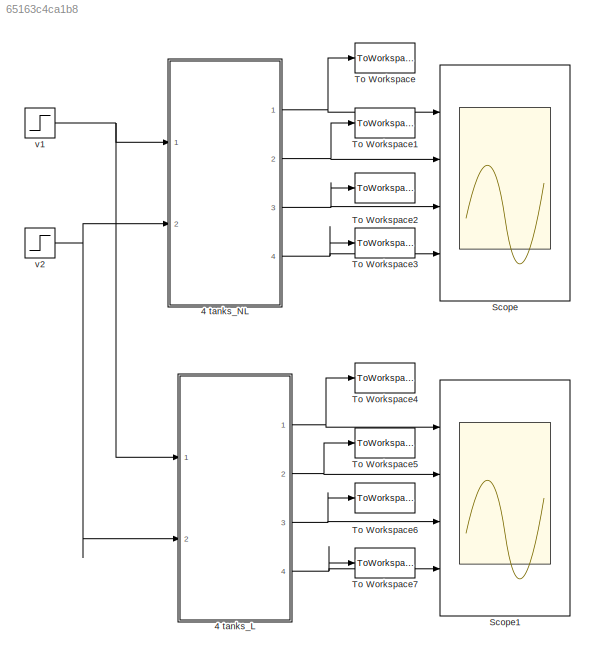
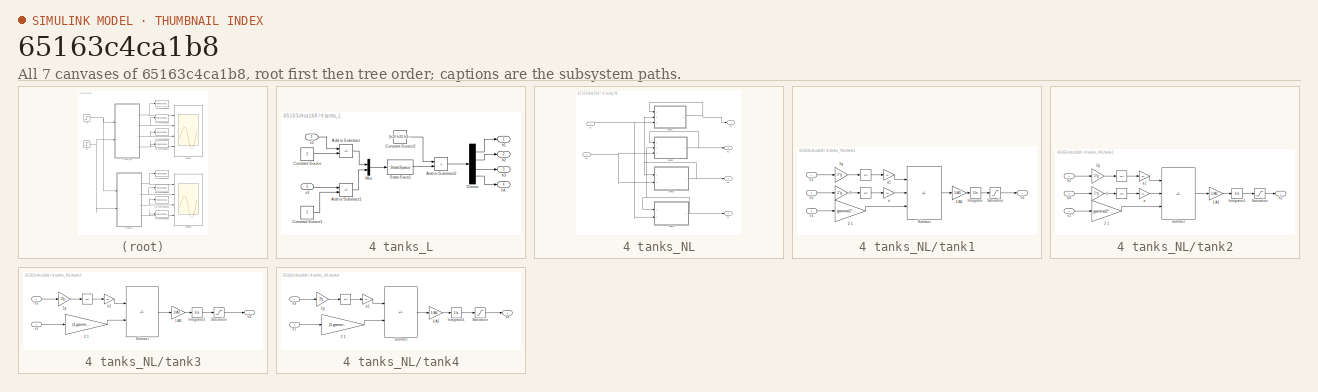
[diagram: thumbnail index - all 7 canvases of the model, root first then tree order]
MODEL mdl_65163c4ca1b8
KIND model
CONFIG AbsTol = auto
CONFIG EnableMultiTasking = on
CONFIG FixedStep = Ts
CONFIG MaxStep = auto
CONFIG MinStep = auto
CONFIG RelTol = 1e-3
CONFIG SampleTimeConstraint = Unconstrained
CONFIG SolverName = ode3
CONFIG StartTime = 0.0
CONFIG StopTime = 1000
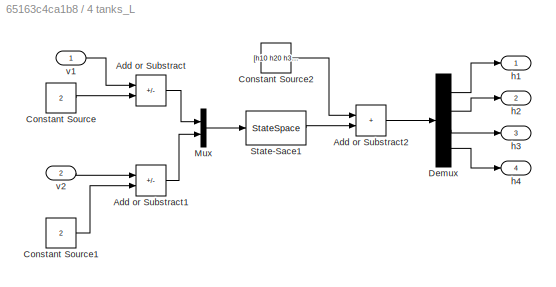
BLOCK [SubSystem] 4 tanks_L
  Ports = [2, 4]
  RequestExecContextInheritance = off
BLOCK [Sum] 4 tanks_L/Add or Substract
  IconShape = rectangular
  Inputs = +-
  Ports = [2, 1]
BLOCK [Sum] 4 tanks_L/Add or Substract1
  IconShape = rectangular
  Inputs = +-
  Ports = [2, 1]
BLOCK [Sum] 4 tanks_L/Add or Substract2
  IconShape = rectangular
  Ports = [2, 1]
BLOCK [Constant] 4 tanks_L/Constant Source
  Value = 2
BLOCK [Constant] 4 tanks_L/Constant Source1
  Value = 2
BLOCK [Constant] 4 tanks_L/Constant Source2
  Value = [h10 h20 h30 h40]
BLOCK [Demux] 4 tanks_L/Demux
  Ports = [1, 4]
BLOCK [Mux] 4 tanks_L/Mux
  DisplayOption = bar
  Inputs = 2
  Ports = [2, 1]
BLOCK [StateSpace] 4 tanks_L/State-Sace1
  A = A
  B = B
  C = C
  D = D
  InitialCondition = 0
  Ports = [1, 1]
BLOCK [Outport] 4 tanks_L/h1 
BLOCK [Outport] 4 tanks_L/h2 
  Port = 2
BLOCK [Outport] 4 tanks_L/h3 
  Port = 3
BLOCK [Outport] 4 tanks_L/h4 
  Port = 4
BLOCK [Inport] 4 tanks_L/v1
BLOCK [Inport] 4 tanks_L/v2
  Port = 2
BLOCK [SubSystem] 4 tanks_NL
  Ports = [2, 4]
  RequestExecContextInheritance = off
BLOCK [Outport] 4 tanks_NL/h1 
BLOCK [Outport] 4 tanks_NL/h2 
  Port = 2
BLOCK [Outport] 4 tanks_NL/h3 
  Port = 3
BLOCK [Outport] 4 tanks_NL/h4 
  Port = 4
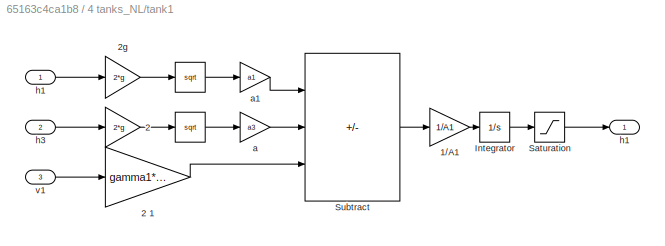
BLOCK [SubSystem] 4 tanks_NL/tank1
  Ports = [3, 1]
  RequestExecContextInheritance = off
BLOCK [Math] 4 tanks_NL/tank1/ 
  Operator = sqrt
  Ports = [1, 1]
  SignedPower = on
BLOCK [Math] 4 tanks_NL/tank1/   
  Operator = sqrt
  Ports = [1, 1]
  SignedPower = on
BLOCK [Gain] 4 tanks_NL/tank1/1//A1
  Gain = 1/A1
BLOCK [Gain] 4 tanks_NL/tank1/2 
  Gain = 2*g
BLOCK [Gain] 4 tanks_NL/tank1/2 1
  Gain = gamma1*k1
BLOCK [Gain] 4 tanks_NL/tank1/2g
  Gain = 2*g
BLOCK [Integrator] 4 tanks_NL/tank1/Integrator
  InitialCondition = h10
  Ports = [1, 1]
BLOCK [Saturate] 4 tanks_NL/tank1/Saturation
  LowerLimit = 0
  UpperLimit = 15
BLOCK [Sum] 4 tanks_NL/tank1/Subtract
  IconShape = rectangular
  Inputs = -++
  Ports = [3, 1]
BLOCK [Gain] 4 tanks_NL/tank1/a
  Gain = a3
BLOCK [Gain] 4 tanks_NL/tank1/a1
  Gain = a1
BLOCK [Inport] 4 tanks_NL/tank1/h1
BLOCK [Outport] 4 tanks_NL/tank1/h1 
BLOCK [Inport] 4 tanks_NL/tank1/h3
  Port = 2
BLOCK [Inport] 4 tanks_NL/tank1/v1
  Port = 3
BLOCK [SubSystem] 4 tanks_NL/tank2
  Ports = [3, 1]
  RequestExecContextInheritance = off
BLOCK [Math] 4 tanks_NL/tank2/ 
  Operator = sqrt
  Ports = [1, 1]
  SignedPower = on
BLOCK [Math] 4 tanks_NL/tank2/   
  Operator = sqrt
  Ports = [1, 1]
  SignedPower = on
BLOCK [Gain] 4 tanks_NL/tank2/1//A1
  Gain = 1/A2
BLOCK [Gain] 4 tanks_NL/tank2/2 
  Gain = 2*g
BLOCK [Gain] 4 tanks_NL/tank2/2 1
  Gain = gamma2*k2
BLOCK [Gain] 4 tanks_NL/tank2/2g
  Gain = 2*g
BLOCK [Integrator] 4 tanks_NL/tank2/Integrator1
  InitialCondition = h20
  Ports = [1, 1]
BLOCK [Saturate] 4 tanks_NL/tank2/Saturation
  LowerLimit = 0
  UpperLimit = 15
BLOCK [Sum] 4 tanks_NL/tank2/Subtract
  IconShape = rectangular
  Inputs = -++
  Ports = [3, 1]
BLOCK [Gain] 4 tanks_NL/tank2/a
  Gain = a4
BLOCK [Gain] 4 tanks_NL/tank2/a1
  Gain = a2
BLOCK [Inport] 4 tanks_NL/tank2/h2
BLOCK [Outport] 4 tanks_NL/tank2/h2 
BLOCK [Inport] 4 tanks_NL/tank2/h4
  Port = 2
BLOCK [Inport] 4 tanks_NL/tank2/v2
  Port = 3
BLOCK [SubSystem] 4 tanks_NL/tank3
  Ports = [2, 1]
  RequestExecContextInheritance = off
BLOCK [Math] 4 tanks_NL/tank3/ 
  Operator = sqrt
  Ports = [1, 1]
  SignedPower = on
BLOCK [Gain] 4 tanks_NL/tank3/1//A1
  Gain = 1/A3
BLOCK [Gain] 4 tanks_NL/tank3/2 1
  Gain = (1-gamma2)*k2
BLOCK [Gain] 4 tanks_NL/tank3/2g
  Gain = 2*g
BLOCK [Integrator] 4 tanks_NL/tank3/Integrator1
  InitialCondition = h30
  Ports = [1, 1]
BLOCK [Saturate] 4 tanks_NL/tank3/Saturation
  LowerLimit = 0
  UpperLimit = 15
BLOCK [Sum] 4 tanks_NL/tank3/Subtract
  IconShape = rectangular
  Inputs = -+
  Ports = [2, 1]
BLOCK [Gain] 4 tanks_NL/tank3/a1
  Gain = a3
BLOCK [Inport] 4 tanks_NL/tank3/h3
BLOCK [Outport] 4 tanks_NL/tank3/h3 
BLOCK [Inport] 4 tanks_NL/tank3/v2
  Port = 2
BLOCK [SubSystem] 4 tanks_NL/tank4
  Ports = [2, 1]
  RequestExecContextInheritance = off
BLOCK [Math] 4 tanks_NL/tank4/ 
  Operator = sqrt
  Ports = [1, 1]
  SignedPower = on
BLOCK [Gain] 4 tanks_NL/tank4/1//A1
  Gain = 1/A4
BLOCK [Gain] 4 tanks_NL/tank4/2 1
  Gain = (1-gamma1)*k1
BLOCK [Gain] 4 tanks_NL/tank4/2g
  Gain = 2*g
BLOCK [Integrator] 4 tanks_NL/tank4/Integrator1
  InitialCondition = h40
  Ports = [1, 1]
BLOCK [Saturate] 4 tanks_NL/tank4/Saturation
  LowerLimit = 0
  UpperLimit = 15
BLOCK [Sum] 4 tanks_NL/tank4/Subtract
  IconShape = rectangular
  Inputs = -+
  Ports = [2, 1]
BLOCK [Gain] 4 tanks_NL/tank4/a1
  Gain = a4
BLOCK [Inport] 4 tanks_NL/tank4/h4
BLOCK [Outport] 4 tanks_NL/tank4/h4 
BLOCK [Inport] 4 tanks_NL/tank4/v1
  Port = 2
BLOCK [Inport] 4 tanks_NL/v1
BLOCK [Inport] 4 tanks_NL/v2
  Port = 2
BLOCK [Scope] Scope
  Floating = off
  NumInputPorts = 4
  Ports = [4]
  ScopeSpecificationString = Simulink.scopes.TimeScopeBlockCfg('CurrentConfiguration', extmgr.ConfigurationSet(extmgr.Configuration('Core','General UI',true),extmgr.Configuration('Core','Source UI',true),extmgr.Configuration('Sources','WiredSimulink',true,'DataLogging',true,'DataLoggingVariableName','ScopeData1','DataLoggingSaveFormat','StructureWithTime','DataLoggingDecimation','1','DataLoggingDecimateData',true),extmgr.Conf...<+3663ch>
BLOCK [Scope] Scope1
  Floating = off
  NumInputPorts = 4
  Ports = [4]
  ScopeSpecificationString = Simulink.scopes.TimeScopeBlockCfg('CurrentConfiguration', extmgr.ConfigurationSet(extmgr.Configuration('Core','General UI',true),extmgr.Configuration('Core','Source UI',true),extmgr.Configuration('Sources','WiredSimulink',true,'DataLogging',true,'DataLoggingSaveFormat','StructureWithTime','DataLoggingDecimation','1','DataLoggingDecimateData',true),extmgr.Configuration('Visuals','Time Domain',true,...<+3620ch>
BLOCK [ToWorkspace] To Workspace
  MaxDataPoints = inf
  Ports = [1]
  SampleTime = -1
  VariableName = h1
BLOCK [ToWorkspace] To Workspace1
  MaxDataPoints = inf
  Ports = [1]
  SampleTime = -1
  VariableName = h2
BLOCK [ToWorkspace] To Workspace2
  MaxDataPoints = inf
  Ports = [1]
  SampleTime = -1
  VariableName = h3
BLOCK [ToWorkspace] To Workspace3
  MaxDataPoints = inf
  Ports = [1]
  SampleTime = -1
  VariableName = h4
BLOCK [ToWorkspace] To Workspace4
  MaxDataPoints = inf
  Ports = [1]
  SampleTime = -1
  VariableName = h1_lin
BLOCK [ToWorkspace] To Workspace5
  MaxDataPoints = inf
  Ports = [1]
  SampleTime = -1
  VariableName = h2_lin
BLOCK [ToWorkspace] To Workspace6
  MaxDataPoints = inf
  Ports = [1]
  SampleTime = -1
  VariableName = h3_lin
BLOCK [ToWorkspace] To Workspace7
  MaxDataPoints = inf
  Ports = [1]
  SampleTime = -1
  VariableName = h4_lin
BLOCK [Step] v1
  After = v11
  Before = v10
  SampleTime = 0
  Time = t1
BLOCK [Step] v2
  After = v22
  Before = v20
  SampleTime = 0
  Time = t2
LINE 4 tanks_L/Add or Substract1:1 -> 4 tanks_L/Mux:2
LINE 4 tanks_L/Add or Substract2:1 -> 4 tanks_L/Demux:1
LINE 4 tanks_L/Add or Substract:1 -> 4 tanks_L/Mux:1
LINE 4 tanks_L/Constant Source1:1 -> 4 tanks_L/Add or Substract1:2
LINE 4 tanks_L/Constant Source2:1 -> 4 tanks_L/Add or Substract2:1
LINE 4 tanks_L/Constant Source:1 -> 4 tanks_L/Add or Substract:2
LINE 4 tanks_L/Demux:1 -> 4 tanks_L/h1 :1
LINE 4 tanks_L/Demux:2 -> 4 tanks_L/h2 :1
LINE 4 tanks_L/Demux:3 -> 4 tanks_L/h3 :1
LINE 4 tanks_L/Demux:4 -> 4 tanks_L/h4 :1
LINE 4 tanks_L/Mux:1 -> 4 tanks_L/State-Sace1:1
LINE 4 tanks_L/State-Sace1:1 -> 4 tanks_L/Add or Substract2:2
LINE 4 tanks_L/v1:1 -> 4 tanks_L/Add or Substract:1
LINE 4 tanks_L/v2:1 -> 4 tanks_L/Add or Substract1:1
NET 4 tanks_L:1 -> Scope1:1, To Workspace4:1
NET 4 tanks_L:2 -> Scope1:2, To Workspace5:1
NET 4 tanks_L:3 -> Scope1:3, To Workspace6:1
NET 4 tanks_L:4 -> Scope1:4, To Workspace7:1
LINE 4 tanks_NL/tank1/   :1 -> 4 tanks_NL/tank1/a:1
LINE 4 tanks_NL/tank1/ :1 -> 4 tanks_NL/tank1/a1:1
LINE 4 tanks_NL/tank1/1//A1:1 -> 4 tanks_NL/tank1/Integrator:1
LINE 4 tanks_NL/tank1/2 1:1 -> 4 tanks_NL/tank1/Subtract:3
LINE 4 tanks_NL/tank1/2 :1 -> 4 tanks_NL/tank1/   :1
LINE 4 tanks_NL/tank1/2g:1 -> 4 tanks_NL/tank1/ :1
LINE 4 tanks_NL/tank1/Integrator:1 -> 4 tanks_NL/tank1/Saturation:1
LINE 4 tanks_NL/tank1/Saturation:1 -> 4 tanks_NL/tank1/h1 :1
LINE 4 tanks_NL/tank1/Subtract:1 -> 4 tanks_NL/tank1/1//A1:1
LINE 4 tanks_NL/tank1/a1:1 -> 4 tanks_NL/tank1/Subtract:1
LINE 4 tanks_NL/tank1/a:1 -> 4 tanks_NL/tank1/Subtract:2
LINE 4 tanks_NL/tank1/h1:1 -> 4 tanks_NL/tank1/2g:1
LINE 4 tanks_NL/tank1/h3:1 -> 4 tanks_NL/tank1/2 :1
LINE 4 tanks_NL/tank1/v1:1 -> 4 tanks_NL/tank1/2 1:1
NET 4 tanks_NL/tank1:1 -> 4 tanks_NL/h1 :1, 4 tanks_NL/tank1:1
LINE 4 tanks_NL/tank2/   :1 -> 4 tanks_NL/tank2/a:1
LINE 4 tanks_NL/tank2/ :1 -> 4 tanks_NL/tank2/a1:1
LINE 4 tanks_NL/tank2/1//A1:1 -> 4 tanks_NL/tank2/Integrator1:1
LINE 4 tanks_NL/tank2/2 1:1 -> 4 tanks_NL/tank2/Subtract:3
LINE 4 tanks_NL/tank2/2 :1 -> 4 tanks_NL/tank2/   :1
LINE 4 tanks_NL/tank2/2g:1 -> 4 tanks_NL/tank2/ :1
LINE 4 tanks_NL/tank2/Integrator1:1 -> 4 tanks_NL/tank2/Saturation:1
LINE 4 tanks_NL/tank2/Saturation:1 -> 4 tanks_NL/tank2/h2 :1
LINE 4 tanks_NL/tank2/Subtract:1 -> 4 tanks_NL/tank2/1//A1:1
LINE 4 tanks_NL/tank2/a1:1 -> 4 tanks_NL/tank2/Subtract:1
LINE 4 tanks_NL/tank2/a:1 -> 4 tanks_NL/tank2/Subtract:2
LINE 4 tanks_NL/tank2/h2:1 -> 4 tanks_NL/tank2/2g:1
LINE 4 tanks_NL/tank2/h4:1 -> 4 tanks_NL/tank2/2 :1
LINE 4 tanks_NL/tank2/v2:1 -> 4 tanks_NL/tank2/2 1:1
NET 4 tanks_NL/tank2:1 -> 4 tanks_NL/h2 :1, 4 tanks_NL/tank2:1
LINE 4 tanks_NL/tank3/ :1 -> 4 tanks_NL/tank3/a1:1
LINE 4 tanks_NL/tank3/1//A1:1 -> 4 tanks_NL/tank3/Integrator1:1
LINE 4 tanks_NL/tank3/2 1:1 -> 4 tanks_NL/tank3/Subtract:2
LINE 4 tanks_NL/tank3/2g:1 -> 4 tanks_NL/tank3/ :1
LINE 4 tanks_NL/tank3/Integrator1:1 -> 4 tanks_NL/tank3/Saturation:1
LINE 4 tanks_NL/tank3/Saturation:1 -> 4 tanks_NL/tank3/h3 :1
LINE 4 tanks_NL/tank3/Subtract:1 -> 4 tanks_NL/tank3/1//A1:1
LINE 4 tanks_NL/tank3/a1:1 -> 4 tanks_NL/tank3/Subtract:1
LINE 4 tanks_NL/tank3/h3:1 -> 4 tanks_NL/tank3/2g:1
LINE 4 tanks_NL/tank3/v2:1 -> 4 tanks_NL/tank3/2 1:1
NET 4 tanks_NL/tank3:1 -> 4 tanks_NL/h3 :1, 4 tanks_NL/tank1:2, 4 tanks_NL/tank3:1
LINE 4 tanks_NL/tank4/ :1 -> 4 tanks_NL/tank4/a1:1
LINE 4 tanks_NL/tank4/1//A1:1 -> 4 tanks_NL/tank4/Integrator1:1
LINE 4 tanks_NL/tank4/2 1:1 -> 4 tanks_NL/tank4/Subtract:2
LINE 4 tanks_NL/tank4/2g:1 -> 4 tanks_NL/tank4/ :1
LINE 4 tanks_NL/tank4/Integrator1:1 -> 4 tanks_NL/tank4/Saturation:1
LINE 4 tanks_NL/tank4/Saturation:1 -> 4 tanks_NL/tank4/h4 :1
LINE 4 tanks_NL/tank4/Subtract:1 -> 4 tanks_NL/tank4/1//A1:1
LINE 4 tanks_NL/tank4/a1:1 -> 4 tanks_NL/tank4/Subtract:1
LINE 4 tanks_NL/tank4/h4:1 -> 4 tanks_NL/tank4/2g:1
LINE 4 tanks_NL/tank4/v1:1 -> 4 tanks_NL/tank4/2 1:1
NET 4 tanks_NL/tank4:1 -> 4 tanks_NL/h4 :1, 4 tanks_NL/tank2:2, 4 tanks_NL/tank4:1
NET 4 tanks_NL/v1:1 -> 4 tanks_NL/tank1:3, 4 tanks_NL/tank4:2
NET 4 tanks_NL/v2:1 -> 4 tanks_NL/tank2:3, 4 tanks_NL/tank3:2
NET 4 tanks_NL:1 -> Scope:1, To Workspace:1
NET 4 tanks_NL:2 -> Scope:2, To Workspace1:1
NET 4 tanks_NL:3 -> Scope:3, To Workspace2:1
NET 4 tanks_NL:4 -> Scope:4, To Workspace3:1
NET v1:1 -> 4 tanks_L:1, 4 tanks_NL:1
NET v2:1 -> 4 tanks_L:2, 4 tanks_NL:2
note: NET lines group one-source signal fan-out (src -> all destinations, sorted); 1:1 wires keep LINE
